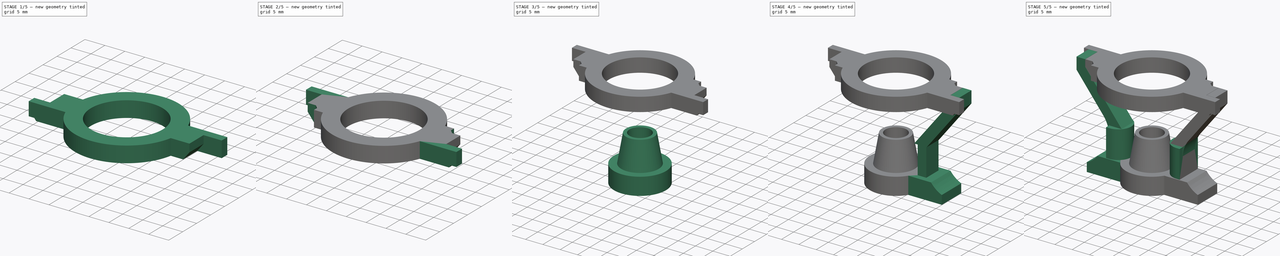
[diagram: build sequence overview — one tinted view per stage of 5, left to right]
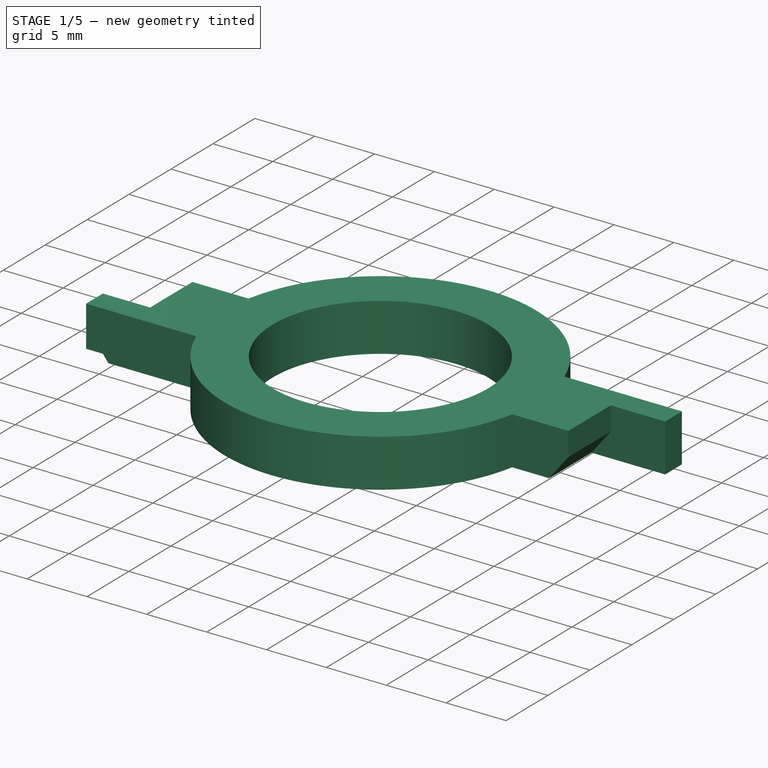
[diagram: stage 1 of 5 — iso view after this stage's code; geometry added in this stage tinted green]
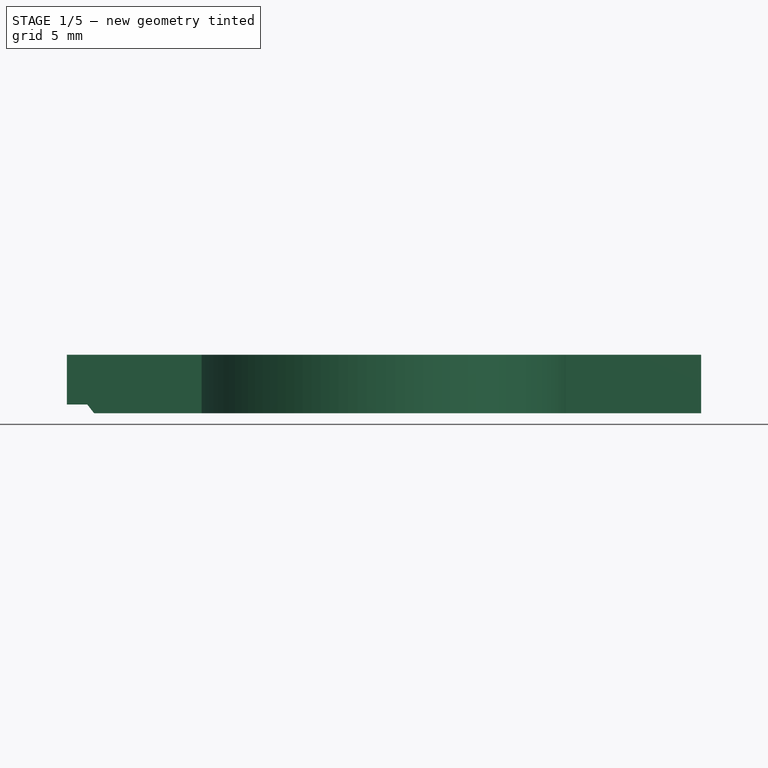
[diagram: stage 1 of 5 — front view after this stage's code; geometry added in this stage tinted green]
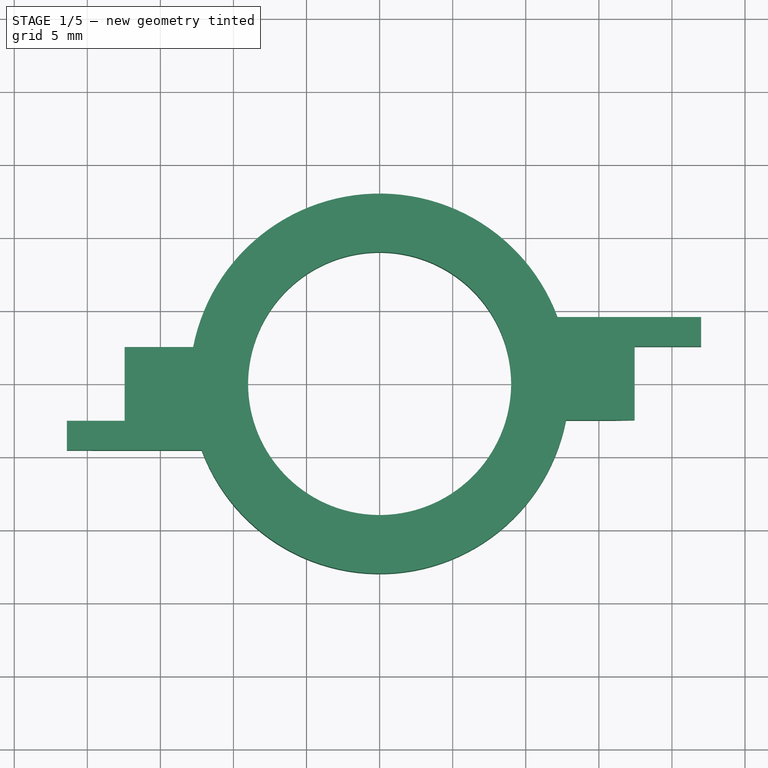
[diagram: stage 1 of 5 — top view after this stage's code; geometry added in this stage tinted green]
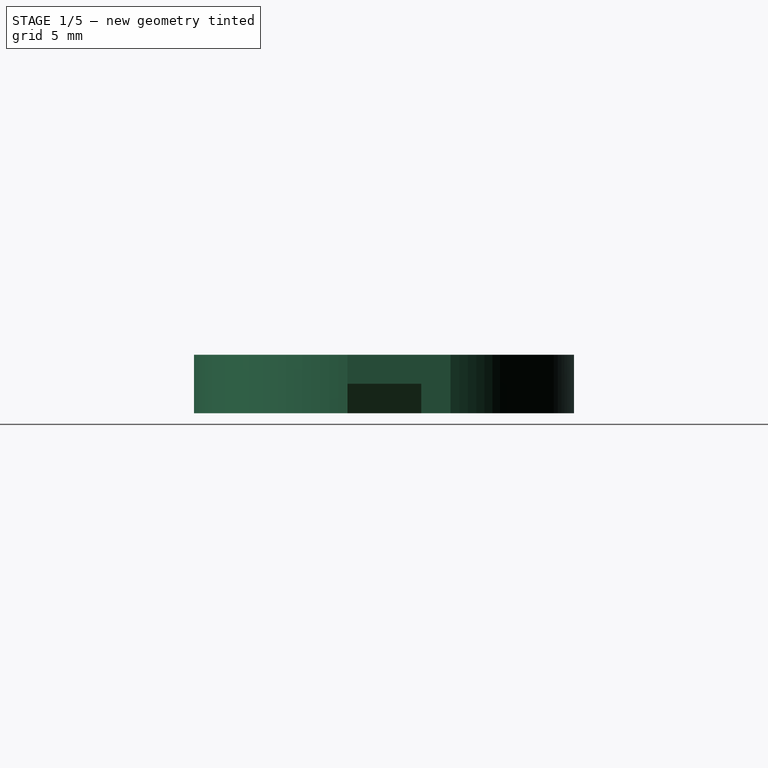
[diagram: stage 1 of 5 — right view after this stage's code; geometry added in this stage tinted green]
FCSTD DOCUMENT  (FreeCAD 1.0R39109 (Git))
Label: center_piece
License: All rights reserved
LicenseURL: https://en.wikipedia.org/wiki/All_rights_reserved
objects: Sketcher::SketchObject×15, PartDesign::Pad×7, PartDesign::Pocket×6, PartDesign::Plane×2, PartDesign::Fillet×2, PartDesign::Mirrored×2, PartDesign::Body×2, PartDesign::AdditiveLoft×1, PartDesign::ShapeBinder×1, PartDesign::PolarPattern×1
note: 89 computed .brp shape members not serialized (recipe doc carries the construction recipe); baked Part::Feature solids carry a one-line shape summary decoded from their .brp

FEATURE [PartDesign::Body] Body  label="centerig_piece"
  AllowCompound = false
  Group = -> [Sketch,DatumPlane,Sketch001,AdditiveLoft,Sketch002,Sketch003,Pad,Pocket,Sketch004,Pad001,Sketch005,Pad002,Sketch006,Pad003,Sketch007,Pad004,Sketch008,Pad005,Fillet,Mirrored,Fillet001]
  Origin = -> Origin
  Tip = -> Fillet001
FEATURE [PartDesign::ShapeBinder] CopyFillet001
  TraceSupport = false
FEATURE [PartDesign::Plane] DatumPlane001
  AttachmentSupport = -> [CopyFillet001]
  Length = 60
  MapMode = 5
  Placement = pos=(0,5.1e-15,23.4043) rot=(0,0,1;0rad)
  ResizeMode = 0
  Width = 60
FEATURE [Sketcher::SketchObject] Sketch009
  ArcFitTolerance = 1e-06
  AttachmentSupport = -> [DatumPlane001]
  FullyConstrained = true
  MakeInternals = false
  MapMode = 5
  Placement = pos=(0,5.1e-15,23.4043) rot=(0,0,1;0rad)
  sketch-geometry (13):
    g0: Circle CenterX=0 CenterY=0 CenterZ=0 NormalX=0 NormalY=0 NormalZ=1 AngleXU=0 Radius=9
    g1: ArcOfCircle CenterX=0 CenterY=0 CenterZ=0 NormalX=0 NormalY=0 NormalZ=1 AngleXU=0 Radius=13 StartAngle=0.357571 EndAngle=2.94808
    g2: LineSegment StartX=22 StartY=2.55 StartZ=0 EndX=17.45 EndY=2.55 EndZ=0
    g3: LineSegment StartX=17.45 StartY=2.55 StartZ=0 EndX=17.45 EndY=-2.5 EndZ=0
    g4: LineSegment StartX=17.45 StartY=-2.5 StartZ=0 EndX=12.7574 EndY=-2.5 EndZ=0
    g5: LineSegment StartX=22 StartY=2.55 StartZ=0 EndX=22 EndY=4.55 EndZ=0
    g6: LineSegment StartX=22 StartY=4.55 StartZ=0 EndX=12.1777 EndY=4.55 EndZ=0
    g7: LineSegment StartX=-17.45 StartY=2.5 StartZ=0 EndX=-17.45 EndY=-2.55 EndZ=0
    g8: LineSegment StartX=-17.45 StartY=-2.55 StartZ=0 EndX=-22 EndY=-2.55 EndZ=0
    g9: LineSegment StartX=-22 StartY=-2.55 StartZ=0 EndX=-22 EndY=-4.55 EndZ=0
    g10: LineSegment StartX=-22 StartY=-4.55 StartZ=0 EndX=-12.1777 EndY=-4.55 EndZ=0
    g11: LineSegment StartX=-17.45 StartY=2.5 StartZ=0 EndX=-12.7574 EndY=2.5 EndZ=0
    g12: ArcOfCircle CenterX=0 CenterY=0 CenterZ=0 NormalX=0 NormalY=0 NormalZ=1 AngleXU=0 Radius=13 StartAngle=3.49916 EndAngle=6.08967
  constraints (39):
    c: Coincident(g0,g-1)
    c: Coincident(g1,g0)
    c: Horizontal(g2)
    c: Coincident(g2,g3)
    c: Vertical(g3)
    c: Coincident(g3,g4)
    c: Horizontal(g4)
    c: Coincident(g2,g5)
    c: Vertical(g5)
    c: Coincident(g5,g6)
    c: Horizontal(g6)
    c: Vertical(g7)
    c: Coincident(g7,g8)
    c: Horizontal(g8)
    c: Coincident(g8,g9)
    c: Vertical(g9)
    c: Coincident(g9,g10)
    c: PointOnObject(g10,g12)
    c: Horizontal(g10)
    c: Coincident(g7,g11)
    c: Horizontal(g11)
    c: Diameter(g0) = 18
    c: Diameter(g1) = 26
    c: Distance(g3,g-1) = 2.5
    c: DistanceX(g-1,g3) = 17.45
    c: DistanceY(g-1,g2) = 2.55
    c: DistanceX(g-1,g2) = 22
    c: DistanceY(g5,g5) = 2
    c: Coincident(g12,g4)
    c: Coincident(g1,g6)
    c: DistanceX(g7,g-1) = 17.45
    c: DistanceY(g-1,g7) = 2.5
    c: DistanceY(g8,g-1) = 2.55
    c: DistanceX(g9,g-1) = 22
    c: DistanceY(g9,g9) = 2
    c: Equal(g1,g12)
    c: Coincident(g1,g11)
    c: PointOnObject(g12,g10)
    c: Coincident(g1,g12)
FEATURE [PartDesign::Pad] Pad006
  Direction = (0,0,1)
  Length = 4
  Length2 = 10
  Placement = pos=(0,5.1e-15,23.4043) rot=(0,0,1;0rad)
  Profile = -> Sketch009
  ReferenceAxis = -> Sketch009 [N_Axis]
  Refine = true
  Reversed = true
  Suppressed = false
  Type = 0
FEATURE [Sketcher::SketchObject] Sketch010
  ArcFitTolerance = 1e-06
  AttachmentSupport = -> [Pad006]
  FullyConstrained = false
  MakeInternals = false
  MapMode = 5
  Placement = pos=(0,-2.5,23.4043) rot=(1,0,0;1.5708rad)
  sketch-geometry (3):
    g0: LineSegment StartX=17.4709 StartY=-1.95258 StartZ=0 EndX=15.7842 EndY=-4.07705 EndZ=0
    g1: LineSegment StartX=15.7842 StartY=-4.07705 StartZ=0 EndX=17.8633 EndY=-4.07705 EndZ=0
    g2: LineSegment StartX=17.8633 StartY=-4.07705 StartZ=0 EndX=17.4709 EndY=-1.95258 EndZ=0
  constraints (4):
    c: Coincident(g0,g1)
    c: Horizontal(g1)
    c: Coincident(g1,g2)
    c: Coincident(g2,g0)
FEATURE [PartDesign::Pocket] Pocket001
  BaseFeature = -> Pad006
  Direction = (0,1,-2e-16)
  Length = 5.05
  Length2 = 5
  Placement = pos=(0,5.1e-15,23.4043) rot=(0,0,1;0rad)
  Profile = -> Sketch010
  ReferenceAxis = -> Sketch010 [N_Axis]
  Refine = true
  Suppressed = false
  Type = 0
FEATURE [Sketcher::SketchObject] Sketch011
  ArcFitTolerance = 1e-06
  AttachmentSupport = -> [Pocket001]
  FullyConstrained = false
  MakeInternals = false
  MapMode = 5
  Placement = pos=(0,2.5,23.4043) rot=(0,0.707107,0.707107;3.14159rad)
  sketch-geometry (3):
    g0: LineSegment StartX=15.8149 StartY=-4.06847 StartZ=0 EndX=17.4676 EndY=-1.97759 EndZ=0
    g1: LineSegment StartX=17.4676 StartY=-1.97759 StartZ=0 EndX=17.9885 EndY=-4.06847 EndZ=0
    g2: LineSegment StartX=17.9885 StartY=-4.06847 StartZ=0 EndX=15.8149 EndY=-4.06847 EndZ=0
  constraints (4):
    c: Coincident(g0,g1)
    c: Coincident(g1,g2)
    c: Coincident(g2,g0)
    c: Horizontal(g2)
FEATURE [PartDesign::Pocket] Pocket002
  BaseFeature = -> Pocket001
  Direction = (0,-1,2e-16)
  Length = 5.05
  Length2 = 5
  Placement = pos=(0,5.1e-15,23.4043) rot=(0,0,1;0rad)
  Profile = -> Sketch011
  ReferenceAxis = -> Sketch011 [N_Axis]
  Refine = true
  Suppressed = false
  Type = 0
FEATURE [Sketcher::SketchObject] Sketch012
  ArcFitTolerance = 1e-06
  AttachmentSupport = -> [Pocket002]
  FullyConstrained = false
  MakeInternals = false
  MapMode = 5
  Placement = pos=(0,-2.55,23.4043) rot=(0,0.707107,0.707107;3.14159rad)
  sketch-geometry (6):
    g0: LineSegment StartX=19.5055 StartY=-4.03728 StartZ=0 EndX=19.9991 EndY=-3.40548 EndZ=0
    g1: LineSegment StartX=19.9991 StartY=-3.40548 StartZ=0 EndX=21.3991 EndY=-3.40548 EndZ=0
    g2: LineSegment StartX=21.3991 StartY=-3.40548 StartZ=0 EndX=21.3991 EndY=0 EndZ=0
    g3: LineSegment StartX=21.3991 StartY=0 StartZ=0 EndX=22.759 EndY=0 EndZ=0
    g4: LineSegment StartX=22.759 StartY=0 StartZ=0 EndX=22.759 EndY=-4.4058 EndZ=0
    g5: LineSegment StartX=22.759 StartY=-4.4058 StartZ=0 EndX=19.5055 EndY=-4.03728 EndZ=0
  constraints (12):
    c: Coincident(g0,g1)
    c: Horizontal(g1)
    c: Coincident(g1,g2)
    c: PointOnObject(g2,g-1)
    c: Vertical(g2)
    c: Coincident(g2,g3)
    c: PointOnObject(g3,g-1)
    c: Coincident(g3,g4)
    c: Vertical(g4)
    c: Coincident(g4,g5)
    c: Coincident(g5,g0)
    c: DistanceX(g1,g1) = 1.4
FEATURE [PartDesign::Pocket] Pocket003
  BaseFeature = -> Pocket002
  Direction = (0,-1,2e-16)
  Length = 5
  Length2 = 5
  Placement = pos=(0,5.1e-15,23.4043) rot=(0,0,1;0rad)
  Profile = -> Sketch012
  ReferenceAxis = -> Sketch012 [N_Axis]
  Refine = true
  Suppressed = false
  Type = 0
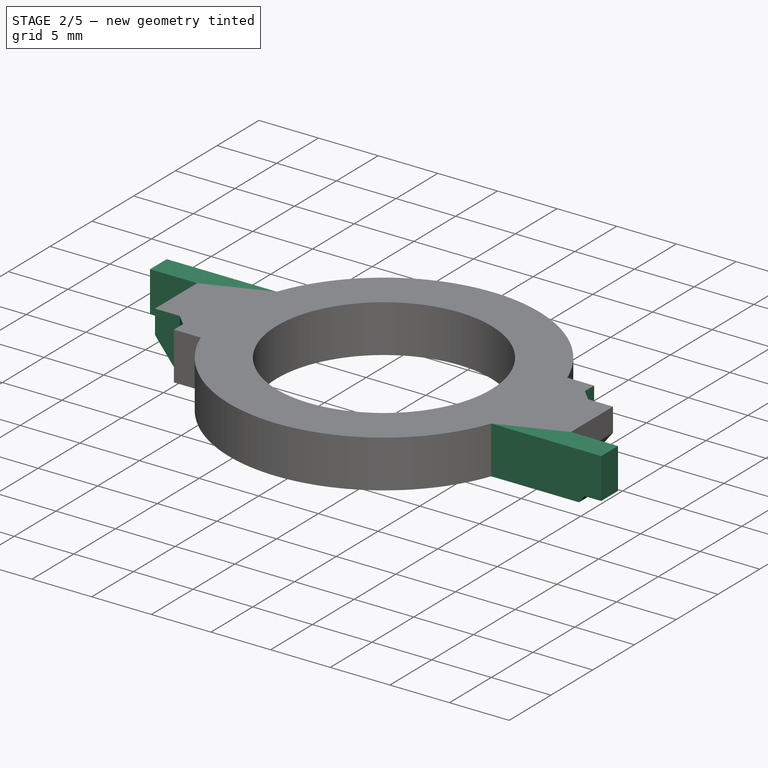
[diagram: stage 2 of 5 — iso view after this stage's code; geometry added in this stage tinted green]
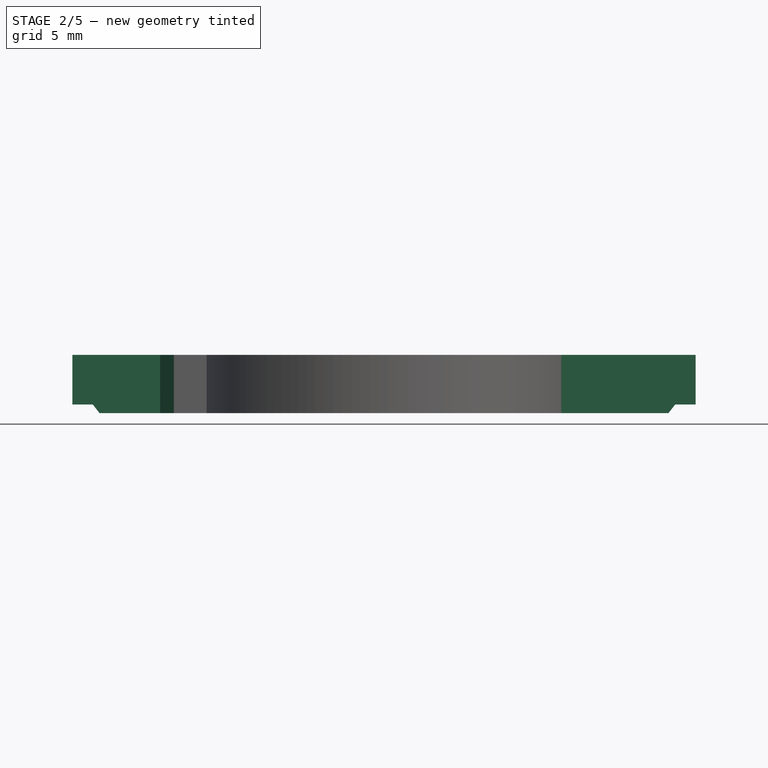
[diagram: stage 2 of 5 — front view after this stage's code; geometry added in this stage tinted green]
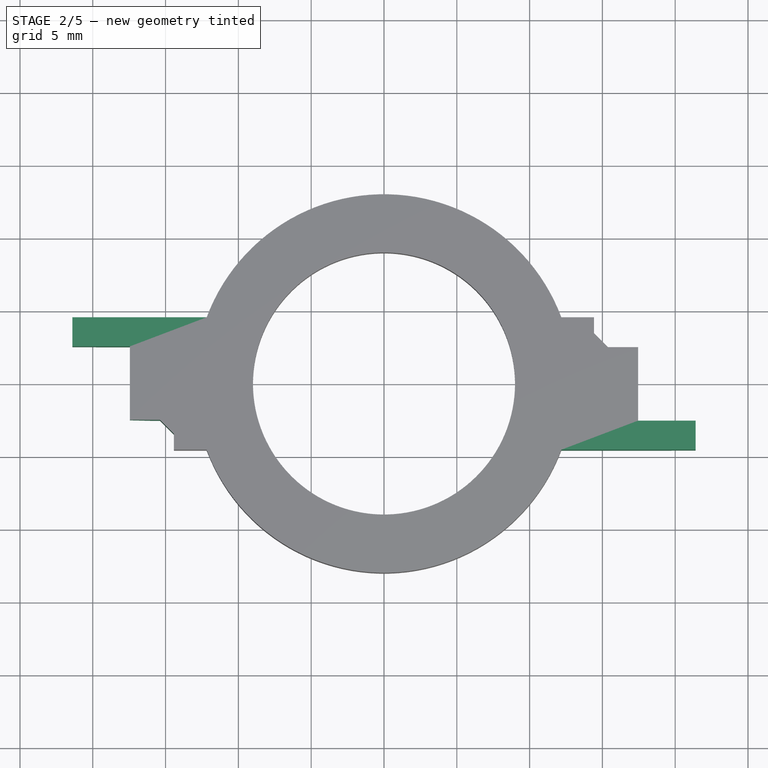
[diagram: stage 2 of 5 — top view after this stage's code; geometry added in this stage tinted green]
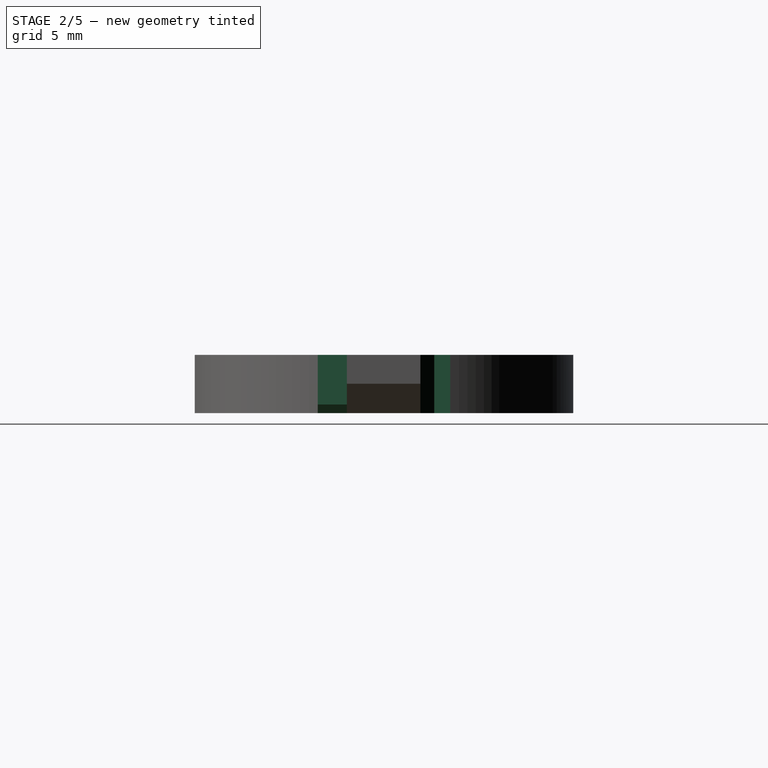
[diagram: stage 2 of 5 — right view after this stage's code; geometry added in this stage tinted green]
FEATURE [Sketcher::SketchObject] Sketch013
  ArcFitTolerance = 1e-06
  AttachmentSupport = -> [Pocket003]
  FullyConstrained = false
  MakeInternals = false
  MapMode = 5
  Placement = pos=(0,2.55,23.4043) rot=(1,0,0;1.5708rad)
  sketch-geometry (6):
    g0: LineSegment StartX=19.4973 StartY=-4.04779 StartZ=0 EndX=19.9998 EndY=-3.40575 EndZ=0
    g1: LineSegment StartX=19.9998 StartY=-3.40575 StartZ=0 EndX=21.3998 EndY=-3.40575 EndZ=0
    g2: LineSegment StartX=21.3998 StartY=-3.40575 StartZ=0 EndX=21.3998 EndY=0 EndZ=0
    g3: LineSegment StartX=21.3998 StartY=0 StartZ=0 EndX=22.4964 EndY=0 EndZ=0
    g4: LineSegment StartX=22.4964 StartY=0 StartZ=0 EndX=22.4964 EndY=-4.46575 EndZ=0
    g5: LineSegment StartX=22.4964 StartY=-4.46575 StartZ=0 EndX=19.4973 EndY=-4.04779 EndZ=0
  constraints (12):
    c: Coincident(g0,g1)
    c: Horizontal(g1)
    c: Coincident(g1,g2)
    c: PointOnObject(g2,g-1)
    c: Vertical(g2)
    c: Coincident(g2,g3)
    c: PointOnObject(g3,g-1)
    c: Coincident(g3,g4)
    c: Vertical(g4)
    c: Coincident(g4,g5)
    c: Coincident(g5,g0)
    c: DistanceX(g1,g1) = 1.4
FEATURE [PartDesign::Pocket] Pocket004
  BaseFeature = -> Pocket003
  Direction = (0,1,-2e-16)
  Length = 5
  Length2 = 5
  Placement = pos=(0,5.1e-15,23.4043) rot=(0,0,1;0rad)
  Profile = -> Sketch013
  ReferenceAxis = -> Sketch013 [N_Axis]
  Refine = true
  Suppressed = false
  Type = 0
FEATURE [PartDesign::Mirrored] Mirrored001
  BaseFeature = -> Pocket004
  MirrorPlane = -> XZ_Plane001
  Placement = pos=(0,5.1e-15,23.4043) rot=(0,0,1;0rad)
  Refine = true
  Suppressed = false
  TransformMode = 1
FEATURE [Sketcher::SketchObject] Sketch014
  ArcFitTolerance = 1e-06
  AttachmentSupport = -> [Mirrored001]
  FullyConstrained = false
  MakeInternals = false
  MapMode = 5
  Placement = pos=(0,5.1e-15,23.4043) rot=(0,0,1;0rad)
  sketch-geometry (7):
    g0: LineSegment StartX=-21.5083 StartY=-2.49782 StartZ=0 EndX=-21.5083 EndY=-4.81239 EndZ=0
    g1: LineSegment StartX=-21.5083 StartY=-4.81239 StartZ=0 EndX=-14.4267 EndY=-4.81239 EndZ=0
    g2: LineSegment StartX=-14.4267 StartY=-4.81239 StartZ=0 EndX=-14.4267 EndY=-3.44836 EndZ=0
    g3: LineSegment StartX=-15.3772 StartY=-2.49782 StartZ=0 EndX=-21.5083 EndY=-2.49782 EndZ=0
    g4: ArcOfCircle [constr] CenterX=-15.3772 CenterY=-3.44836 CenterZ=0 NormalX=0 NormalY=0 NormalZ=1 AngleXU=0 Radius=0.950536 StartAngle=0 EndAngle=1.5708
    g5: GeomPoint [constr] X=-14.4267 Y=-2.49782 Z=0
    g6: LineSegment StartX=-14.4267 StartY=-3.44836 StartZ=0 EndX=-15.3772 EndY=-2.49782 EndZ=0
  constraints (14):
    c: Coincident(g0,g1)
    c: Coincident(g1,g2)
    c: Coincident(g3,g0)
    c: Vertical(g0)
    c: Vertical(g2)
    c: Horizontal(g1)
    c: Horizontal(g3)
    c: PointOnObject(g5,g2)
    c: PointOnObject(g5,g3)
    c: Tangent(g2,g4) = -1.5708
    c: Tangent(g3,g4) = -1.5708
    c: Coincident(g6,g2)
    c: Coincident(g6,g3)
    c: Block(g3)
FEATURE [PartDesign::Pocket] Pocket005
  BaseFeature = -> Mirrored001
  Direction = (0,0,-1)
  Length = 5
  Length2 = 5
  Placement = pos=(0,5.1e-15,23.4043) rot=(0,0,1;0rad)
  Profile = -> Sketch014
  ReferenceAxis = -> Sketch014 [N_Axis]
  Refine = true
  Suppressed = false
  Type = 0
FEATURE [PartDesign::PolarPattern] PolarPattern
  Angle = 360
  Axis = -> Sketch014 [N_Axis]
  BaseFeature = -> Pocket005
  Mode = 0
  Occurrences = 2
  Offset = 120
  Originals = -> [Pocket005]
  Placement = pos=(0,5.1e-15,23.4043) rot=(0,0,1;0rad)
  Refine = true
  Suppressed = false
  TransformMode = 0
FEATURE [PartDesign::Body] Body001  label="stability_ring"
  AllowCompound = false
  Group = -> [Sketch009,DatumPlane001,CopyFillet001,Pad006,Sketch010,Pocket001,Sketch011,Pocket002,Sketch012,Pocket003,Sketch013,Pocket004,Mirrored001,Sketch014,Pocket005,PolarPattern]
  Origin = -> Origin001
  Tip = -> PolarPattern
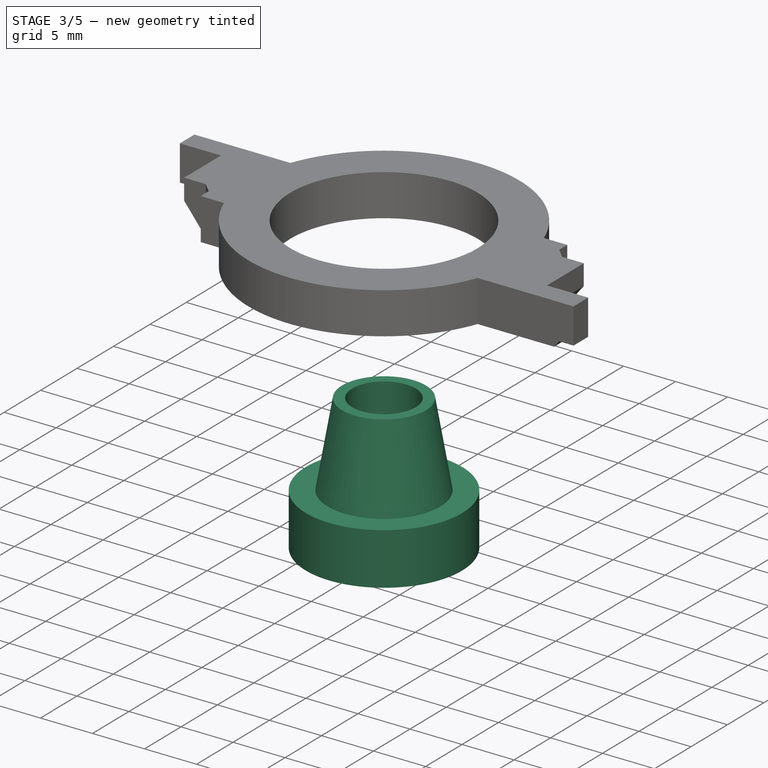
[diagram: stage 3 of 5 — iso view after this stage's code; geometry added in this stage tinted green]
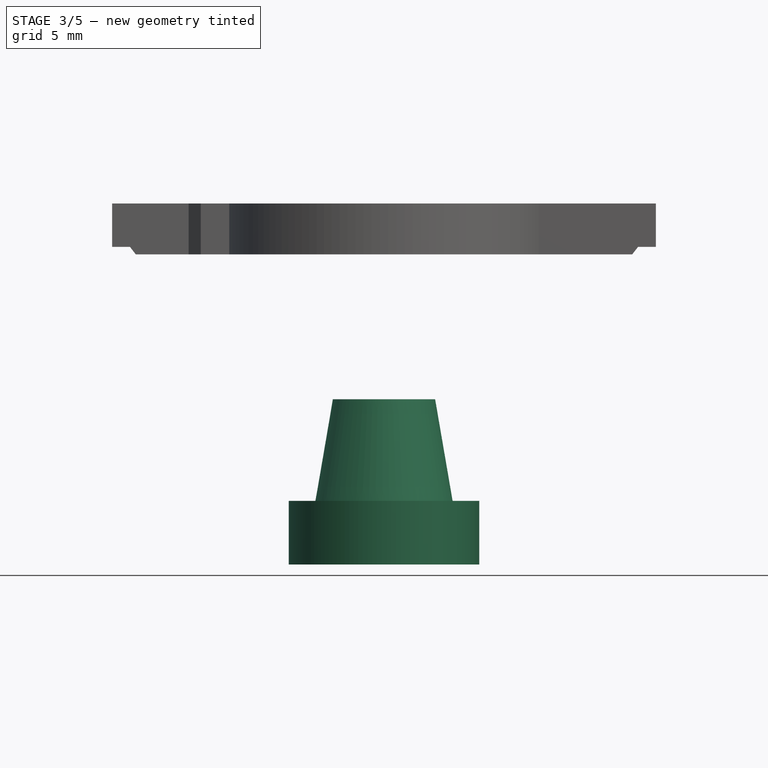
[diagram: stage 3 of 5 — front view after this stage's code; geometry added in this stage tinted green]
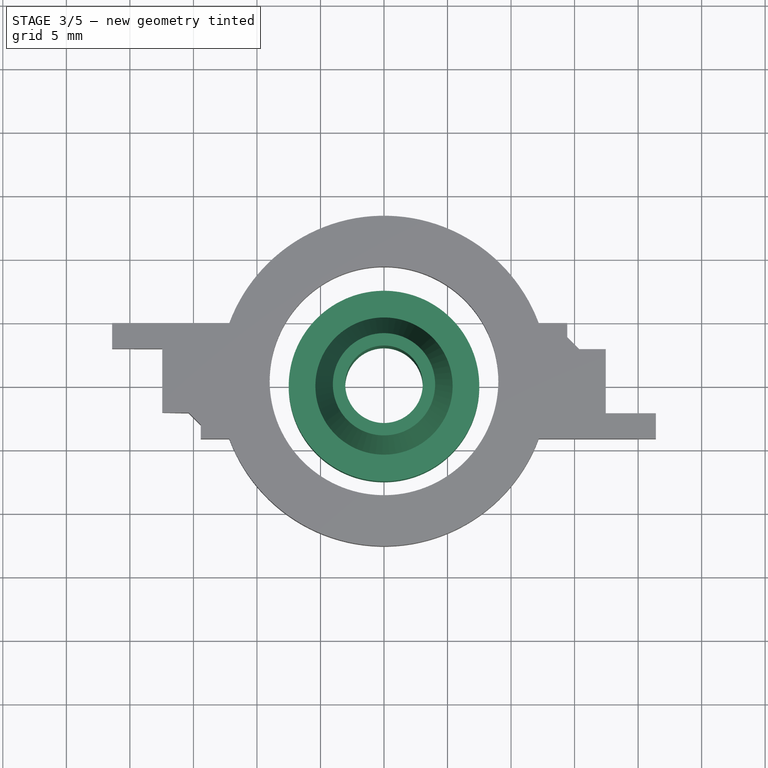
[diagram: stage 3 of 5 — top view after this stage's code; geometry added in this stage tinted green]
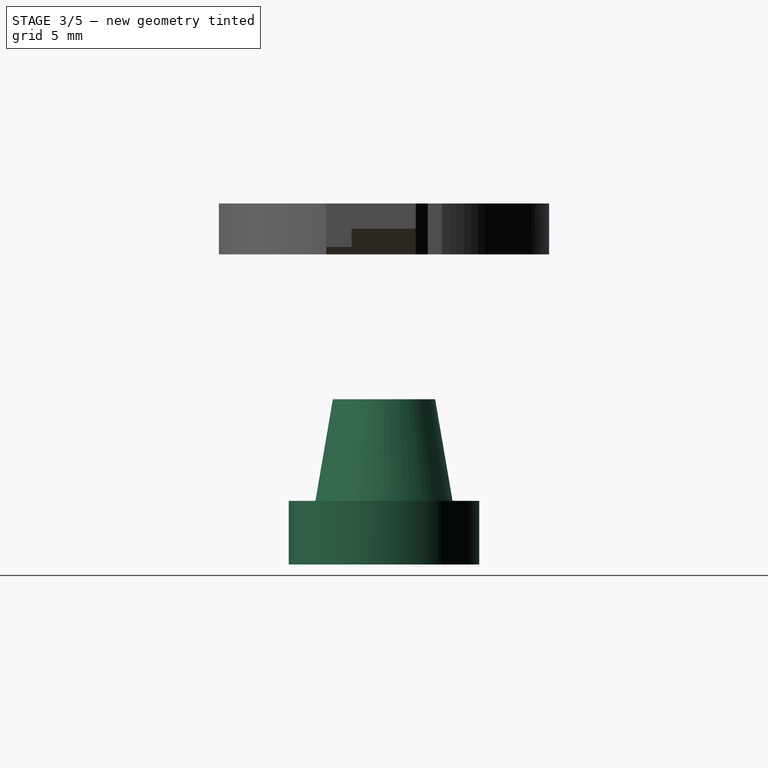
[diagram: stage 3 of 5 — right view after this stage's code; geometry added in this stage tinted green]
FEATURE [Sketcher::SketchObject] Sketch
  ArcFitTolerance = 1e-06
  AttachmentSupport = -> [XY_Plane]
  FullyConstrained = true
  MakeInternals = false
  MapMode = 5
  sketch-geometry (1):
    g0: Circle CenterX=0 CenterY=0 CenterZ=0 NormalX=0 NormalY=0 NormalZ=1 AngleXU=0 Radius=5.4
  constraints (2):
    c: Diameter(g0) = 10.8
    c: Coincident(g0,g-1)
FEATURE [PartDesign::Plane] DatumPlane
  AttachmentOffset = pos=(0,0,8) rot=(0,0,1;0rad)
  AttachmentSupport = -> [Sketch]
  Length = 60
  MapMode = 2
  Placement = pos=(0,0,8) rot=(0,0,1;0rad)
  ResizeMode = 0
  Width = 60
FEATURE [Sketcher::SketchObject] Sketch001
  ArcFitTolerance = 1e-06
  AttachmentSupport = -> [DatumPlane]
  FullyConstrained = true
  MakeInternals = false
  MapMode = 5
  Placement = pos=(0,0,8) rot=(0,0,1;0rad)
  sketch-geometry (1):
    g0: Circle CenterX=0 CenterY=0 CenterZ=0 NormalX=0 NormalY=0 NormalZ=1 AngleXU=0 Radius=4.025
  constraints (2):
    c: Diameter(g0) = 8.05
    c: Coincident(g0,g-1)
FEATURE [PartDesign::AdditiveLoft] AdditiveLoft
  Closed = false
  Profile = -> Sketch
  Refine = true
  Ruled = false
  Sections = -> [Sketch001]
  Suppressed = false
FEATURE [Sketcher::SketchObject] Sketch002
  ArcFitTolerance = 1e-06
  AttachmentSupport = -> [DatumPlane]
  FullyConstrained = true
  MakeInternals = false
  MapMode = 5
  Placement = pos=(0,0,8) rot=(0,0,1;0rad)
  sketch-geometry (1):
    g0: Circle CenterX=0 CenterY=0 CenterZ=0 NormalX=0 NormalY=0 NormalZ=1 AngleXU=0 Radius=3.05
  constraints (2):
    c: Diameter(g0) = 6.1
    c: Coincident(g0,g-1)
FEATURE [Sketcher::SketchObject] Sketch003
  ArcFitTolerance = 1e-06
  AttachmentSupport = -> [AdditiveLoft]
  FullyConstrained = true
  MakeInternals = false
  MapMode = 5
  Placement = pos=(0,0,0) rot=(1,0,0;3.14159rad)
  sketch-geometry (1):
    g0: Circle CenterX=0 CenterY=0 CenterZ=0 NormalX=0 NormalY=0 NormalZ=1 AngleXU=0 Radius=7.5
  constraints (2):
    c: Diameter(g0) = 15
    c: Coincident(g0,g-1)
FEATURE [PartDesign::Pad] Pad
  BaseFeature = -> AdditiveLoft
  Direction = (0,0,-1)
  Length = 5
  Length2 = 10
  Profile = -> Sketch003
  ReferenceAxis = -> Sketch003 [N_Axis]
  Refine = true
  Suppressed = false
  Type = 0
FEATURE [PartDesign::Pocket] Pocket
  BaseFeature = -> Pad
  Direction = (0,0,-1)
  Length = 200
  Length2 = 5
  Profile = -> Sketch002
  ReferenceAxis = -> Sketch002 [N_Axis]
  Refine = true
  Suppressed = false
  Type = 0
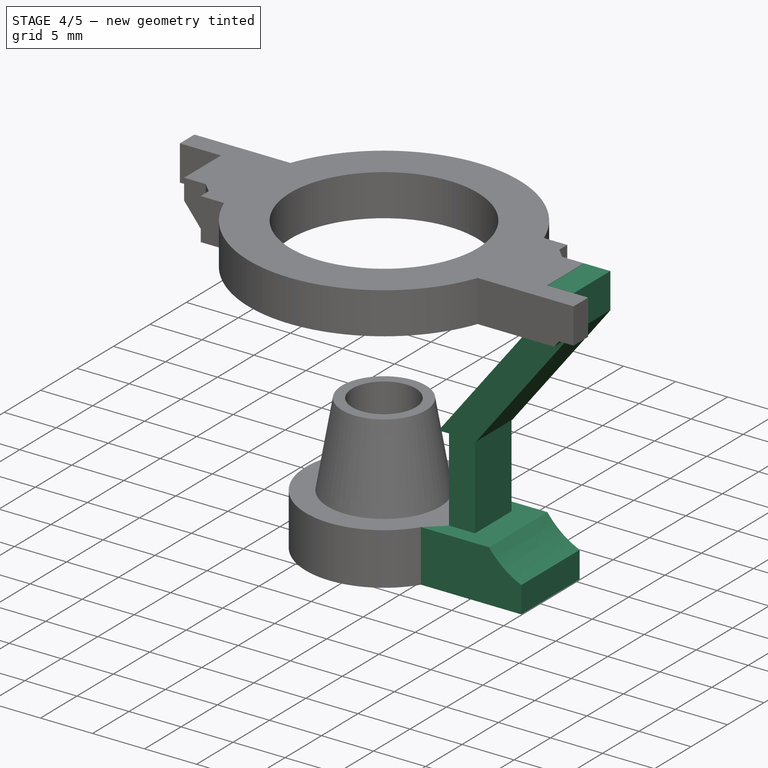
[diagram: stage 4 of 5 — iso view after this stage's code; geometry added in this stage tinted green]
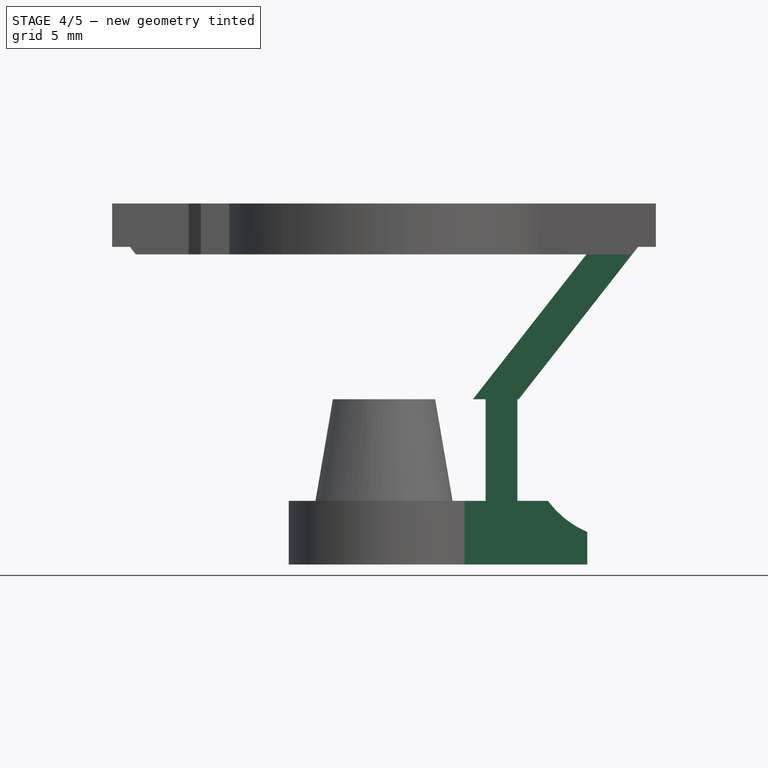
[diagram: stage 4 of 5 — front view after this stage's code; geometry added in this stage tinted green]
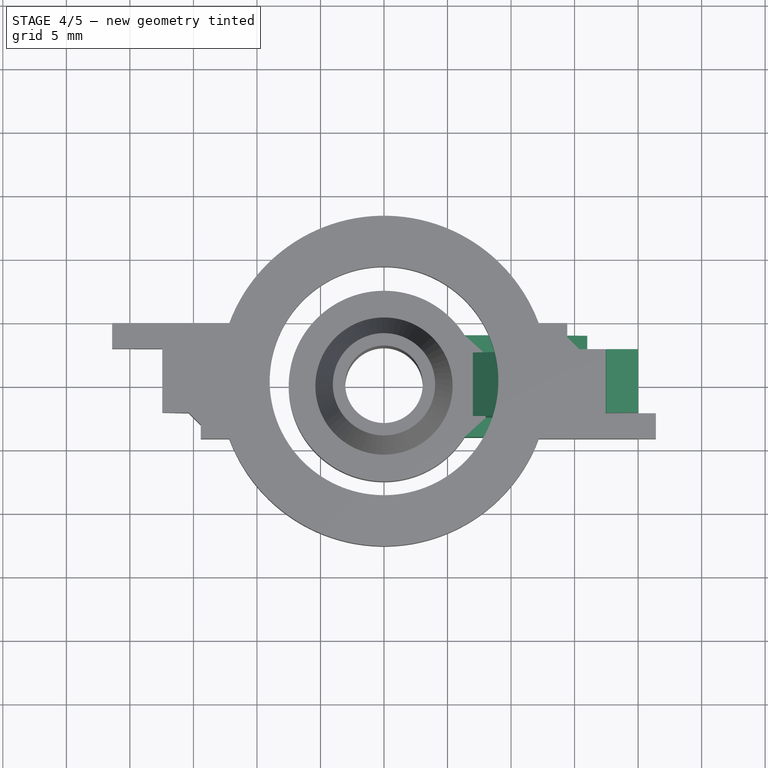
[diagram: stage 4 of 5 — top view after this stage's code; geometry added in this stage tinted green]
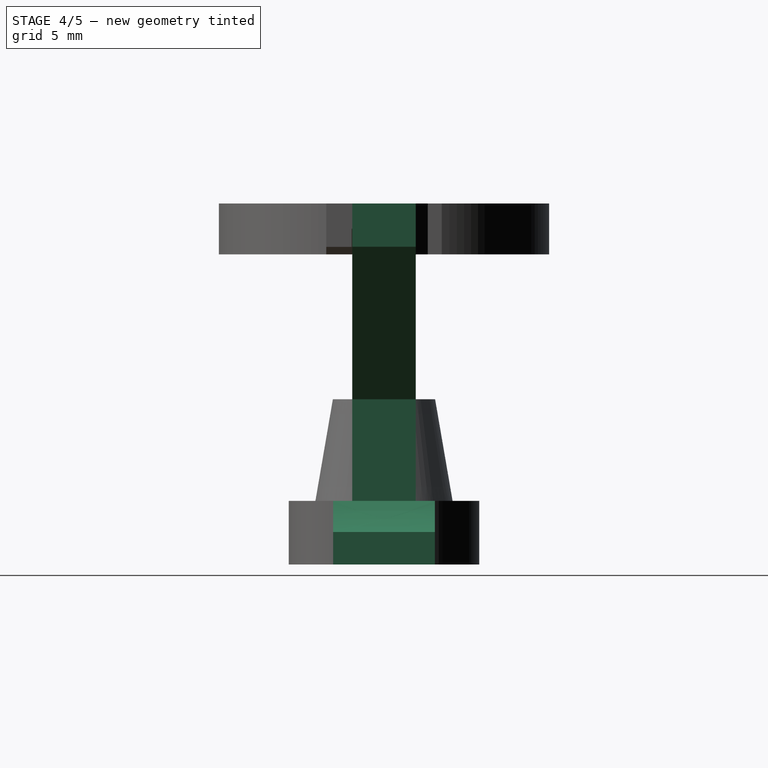
[diagram: stage 4 of 5 — right view after this stage's code; geometry added in this stage tinted green]
FEATURE [Sketcher::SketchObject] Sketch004
  ArcFitTolerance = 1e-06
  AttachmentSupport = -> [Pocket]
  FullyConstrained = true
  MakeInternals = false
  MapMode = 5
  sketch-geometry (4):
    g0: LineSegment StartX=6 StartY=4 StartZ=0 EndX=6 EndY=-4 EndZ=0
    g1: LineSegment StartX=6 StartY=-4 StartZ=0 EndX=12.5 EndY=-4 EndZ=0
    g2: LineSegment StartX=12.5 StartY=-4 StartZ=0 EndX=12.5 EndY=4 EndZ=0
    g3: LineSegment StartX=12.5 StartY=4 StartZ=0 EndX=6 EndY=4 EndZ=0
  constraints (11):
    c: Coincident(g0,g1)
    c: Coincident(g1,g2)
    c: Coincident(g2,g3)
    c: Coincident(g3,g0)
    c: Vertical(g0)
    c: Horizontal(g1)
    c: Horizontal(g3)
    c: DistanceX(g-1,g2) = 12.5
    c: DistanceY(g2,g2) = 8
    c: DistanceX(g-1,g0) = 6
    c: Symmetric(g1,g2,g-1)
FEATURE [PartDesign::Pad] Pad001  label="prop guard base block"
  BaseFeature = -> Pocket
  Direction = (0,0,1)
  Length = 5
  Length2 = 10
  Profile = -> Sketch004
  ReferenceAxis = -> Sketch004 [N_Axis]
  Refine = true
  Reversed = true
  Suppressed = false
  Type = 0
FEATURE [Sketcher::SketchObject] Sketch005
  ArcFitTolerance = 1e-06
  AttachmentSupport = -> [Pad001]
  FullyConstrained = false
  MakeInternals = false
  MapMode = 5
  Placement = pos=(0,-4,0) rot=(1,0,0;1.5708rad)
  sketch-geometry (10):
    g0: LineSegment StartX=12.5 StartY=-5 StartZ=0 EndX=12.5 EndY=0 EndZ=0
    g1: LineSegment StartX=16 StartY=-2.45 StartZ=0 EndX=16 EndY=-5 EndZ=0
    g2: LineSegment StartX=16 StartY=-5 StartZ=0 EndX=12.5 EndY=-5 EndZ=0
    g3: LineSegment StartX=12.5 StartY=0 StartZ=0 EndX=12.9 EndY=0 EndZ=0
    g4: Circle [constr] CenterX=12.9 CenterY=0 CenterZ=0 NormalX=0 NormalY=0 NormalZ=1 AngleXU=0 Radius=1
    g5: Circle [constr] CenterX=14.1513 CenterY=-1.66412 CenterZ=0 NormalX=0 NormalY=0 NormalZ=1 AngleXU=0 Radius=1
    g6: Circle [constr] CenterX=16 CenterY=-2.45 CenterZ=0 NormalX=0 NormalY=0 NormalZ=1 AngleXU=0 Radius=1
    g7: BSplineCurve PolesCount=3 KnotsCount=2 Degree=2 IsPeriodic=0
    g8: GeomPoint [constr] X=12.9 Y=0 Z=0
    g9: GeomPoint [constr] X=16 Y=-2.45 Z=0
  constraints (23):
    c: PointOnObject(g0,g-1)
    c: Vertical(g0)
    c: Vertical(g1)
    c: Coincident(g1,g2)
    c: Coincident(g2,g0)
    c: Horizontal(g2)
    c: DistanceY(g0,g0) = 5
    c: DistanceX(g-1,g0) = 12.5
    c: DistanceX(g2,g2) = 3.5
    c: DistanceY(g1,g1) = 2.55
    c: Coincident(g3,g0)
    c: PointOnObject(g3,g-1)
    c: Weight(g4) = 1
    c: Equal(g4,g5)
    c: Equal(g4,g6)
    c: InternalAlignment(g4,g7)
    c: InternalAlignment(g5,g7)
    c: InternalAlignment(g6,g7)
    c: InternalAlignment(g8,g7)
    c: InternalAlignment(g9,g7)
    c: Coincident(g4,g3)
    c: Coincident(g6,g1)
    c: DistanceX(g3,g3) = 0.4
FEATURE [PartDesign::Pad] Pad002  label="prop guard out"
  BaseFeature = -> Pad001
  Direction = (0,-1,2e-16)
  Length = 8
  Length2 = 10
  Profile = -> Sketch005
  ReferenceAxis = -> Sketch005 [N_Axis]
  Refine = true
  Reversed = true
  Suppressed = false
  Type = 0
FEATURE [Sketcher::SketchObject] Sketch006
  ArcFitTolerance = 1e-06
  AttachmentSupport = -> [Pad002]
  FullyConstrained = true
  MakeInternals = false
  MapMode = 5
  Placement = pos=(0,0,-1e-16) rot=(0,0,1;0rad)
  sketch-geometry (4):
    g0: LineSegment StartX=8 StartY=2.5 StartZ=0 EndX=8 EndY=-2.5 EndZ=0
    g1: LineSegment StartX=8 StartY=-2.5 StartZ=0 EndX=10.5 EndY=-2.5 EndZ=0
    g2: LineSegment StartX=10.5 StartY=-2.5 StartZ=0 EndX=10.5 EndY=2.5 EndZ=0
    g3: LineSegment StartX=10.5 StartY=2.5 StartZ=0 EndX=8 EndY=2.5 EndZ=0
  constraints (11):
    c: Coincident(g0,g1)
    c: Coincident(g1,g2)
    c: Coincident(g2,g3)
    c: Coincident(g3,g0)
    c: Vertical(g0)
    c: Horizontal(g1)
    c: Horizontal(g3)
    c: DistanceX(g3,g3) = 2.5
    c: DistanceY(g2,g2) = 5
    c: Symmetric(g2,g1,g-1)
    c: DistanceX(g-1,g0) = 8
FEATURE [PartDesign::Pad] Pad003  label="prop guard in base"
  BaseFeature = -> Pad002
  Direction = (0,0,1)
  Length = 8
  Length2 = 10
  Profile = -> Sketch006
  ReferenceAxis = -> Sketch006 [N_Axis]
  Refine = true
  Suppressed = false
  Type = 0
FEATURE [Sketcher::SketchObject] Sketch007
  ArcFitTolerance = 1e-06
  AttachmentSupport = -> [Pad003]
  FullyConstrained = true
  MakeInternals = false
  MapMode = 5
  Placement = pos=(0,-2.5,0) rot=(1,0,0;1.5708rad)
  sketch-geometry (6):
    g0: LineSegment StartX=7 StartY=8 StartZ=0 EndX=10.6 EndY=8 EndZ=0
    g1: LineSegment StartX=10.6 StartY=8 StartZ=0 EndX=20 EndY=20 EndZ=0
    g2: LineSegment StartX=17.5 StartY=21.4043 StartZ=0 EndX=7 EndY=8 EndZ=0
    g3: LineSegment StartX=20 StartY=20 StartZ=0 EndX=20 EndY=23.4043 EndZ=0
    g4: LineSegment StartX=20 StartY=23.4043 StartZ=0 EndX=17.5 EndY=23.4043 EndZ=0
    g5: LineSegment StartX=17.5 StartY=23.4043 StartZ=0 EndX=17.5 EndY=21.4043 EndZ=0
  constraints (18):
    c: Horizontal(g0)
    c: Coincident(g0,g1)
    c: Coincident(g2,g0)
    c: Coincident(g1,g3)
    c: Vertical(g3)
    c: Coincident(g3,g4)
    c: Horizontal(g4)
    c: Coincident(g4,g5)
    c: Coincident(g5,g2)
    c: Vertical(g5)
    c: Parallel(g2,g1)
    c: DistanceX(g0,g0) = 3.6
    c: DistanceX(g-1,g0) = 7
    c: DistanceY(g-1,g0) = 8
    c: DistanceX(g-1,g3) = 20
    c: DistanceX(g4,g4) = 2.5
    c: DistanceY(g5,g5) = 2
    c: DistanceY(g-1,g1) = 20
FEATURE [PartDesign::Pad] Pad004  label="prop guard in extension"
  BaseFeature = -> Pad003
  Direction = (0,-1,2e-16)
  Length = 5
  Length2 = 10
  Profile = -> Sketch007
  ReferenceAxis = -> Sketch007 [N_Axis]
  Refine = true
  Reversed = true
  Suppressed = false
  Type = 0
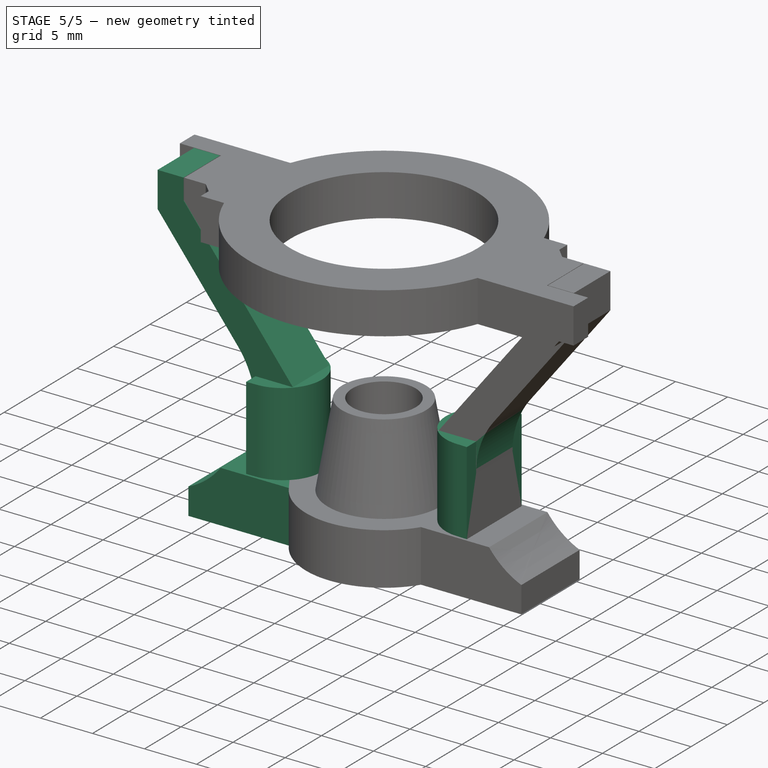
[diagram: stage 5 of 5 — iso view after this stage's code; geometry added in this stage tinted green]
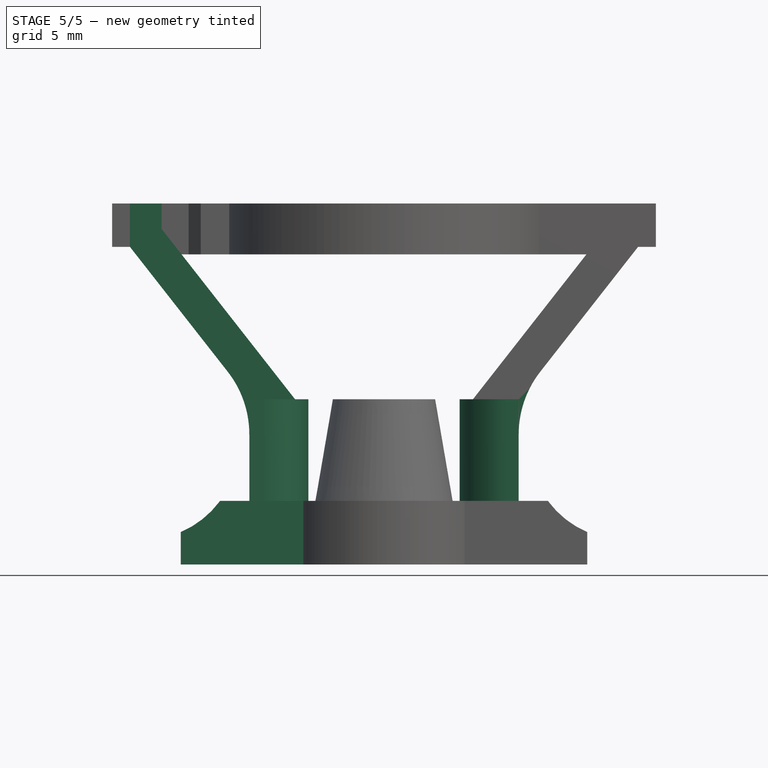
[diagram: stage 5 of 5 — front view after this stage's code; geometry added in this stage tinted green]
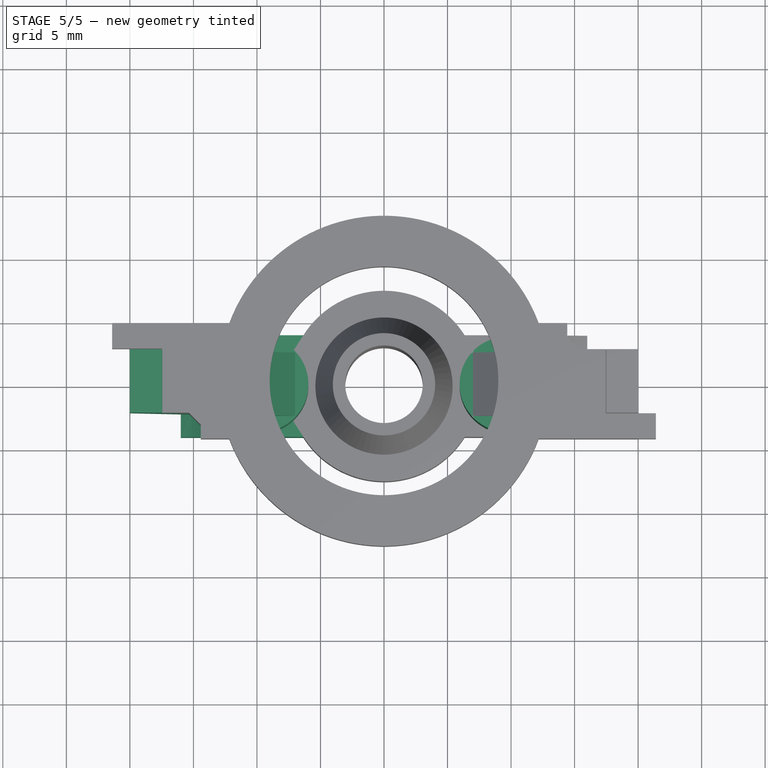
[diagram: stage 5 of 5 — top view after this stage's code; geometry added in this stage tinted green]
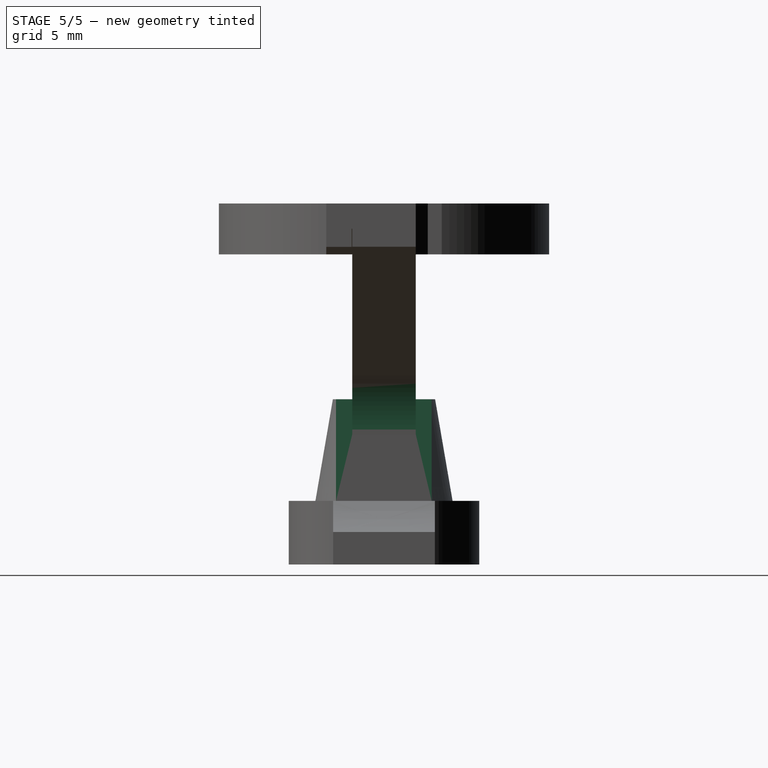
[diagram: stage 5 of 5 — right view after this stage's code; geometry added in this stage tinted green]
FEATURE [Sketcher::SketchObject] Sketch008
  ArcFitTolerance = 1e-06
  FullyConstrained = true
  MakeInternals = false
  MapMode = 5
  sketch-geometry (5):
    g0: ArcOfCircle CenterX=9.7 CenterY=0 CenterZ=0 NormalX=0 NormalY=0 NormalZ=1 AngleXU=0 Radius=3.75 StartAngle=1.59747 EndAngle=4.68572
    g1: GeomPoint [constr] X=5.6 Y=0 Z=0
    g2: LineSegment StartX=9.6 StartY=-3.74867 StartZ=0 EndX=10.6 EndY=-3.77534 EndZ=0
    g3: LineSegment StartX=10.6 StartY=-3.77534 StartZ=0 EndX=10.6 EndY=3.74867 EndZ=0
    g4: LineSegment StartX=10.6 StartY=3.74867 StartZ=0 EndX=9.6 EndY=3.74867 EndZ=0
  constraints (14):
    c: PointOnObject(g0,g-1)
    c: DistanceX(g-1,g0) = 9.7
    c: Radius(g0) = 3.75
    c: PointOnObject(g1,g-1)
    c: DistanceX(g-1,g1) = 5.6
    c: DistanceX(g1,g0) = 4
    c: DistanceX(g1,g0) = 4
    c: Tangent(g0,g2) = -1.5708
    c: Coincident(g2,g3)
    c: Vertical(g3)
    c: Coincident(g3,g4)
    c: Coincident(g4,g0)
    c: Horizontal(g4)
    c: DistanceX(g1,g2) = 5
FEATURE [PartDesign::Pad] Pad005  label="centering half circle"
  BaseFeature = -> Pad004
  Direction = (0,0,1)
  Length = 8
  Length2 = 10
  Profile = -> Sketch008
  ReferenceAxis = -> Sketch008 [N_Axis]
  Refine = true
  Suppressed = false
  Type = 0
FEATURE [PartDesign::Fillet] Fillet
  Base = -> Pad005 [Edge29]
  BaseFeature = -> Pad005
  Radius = 8
  Refine = true
  SupportTransform = false
  Suppressed = false
  UseAllEdges = false
FEATURE [PartDesign::Mirrored] Mirrored
  BaseFeature = -> Fillet
  MirrorPlane = -> Sketch004 [V_Axis]
  Originals = -> [Pad001,Pad002,Pad003,Pad004,Pad005]
  Refine = true
  Suppressed = false
  TransformMode = 0
FEATURE [PartDesign::Fillet] Fillet001
  Base = -> Mirrored [Edge59]
  BaseFeature = -> Mirrored
  Radius = 8
  Refine = true
  SupportTransform = false
  Suppressed = false
  UseAllEdges = false
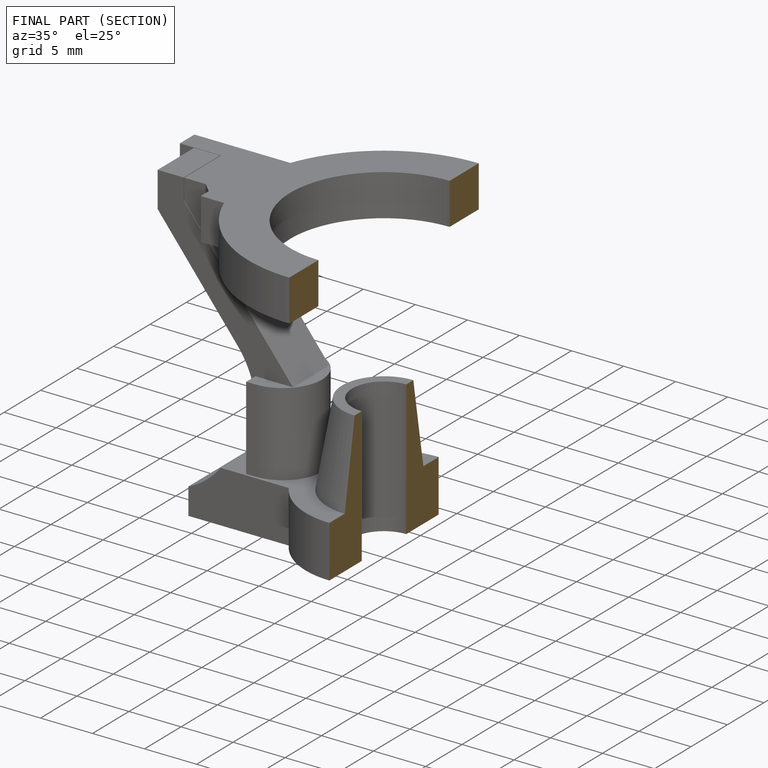
[diagram: finished part — half-section view (interior)]
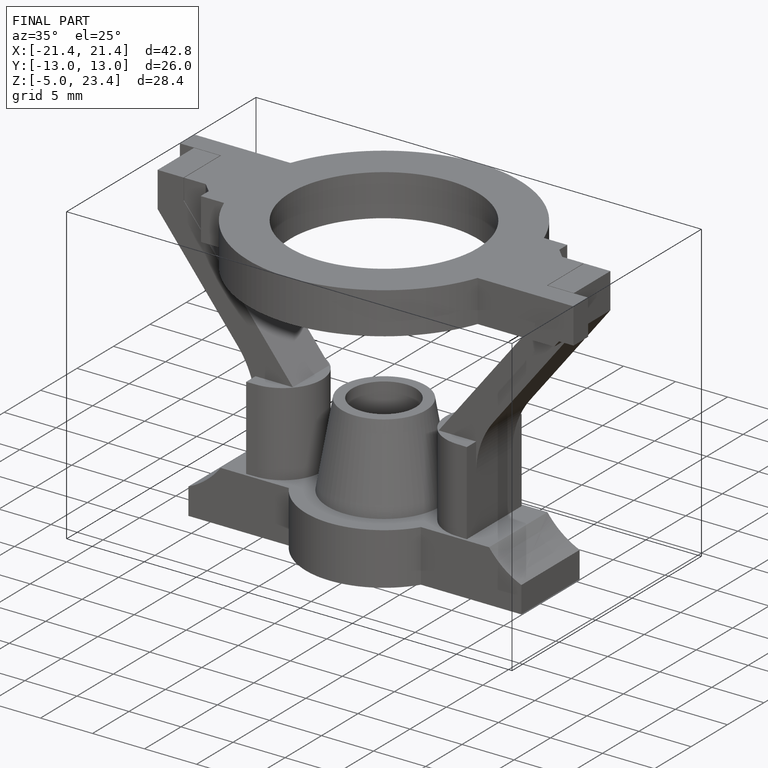
[diagram: finished part — iso view with bounding-box wireframe]
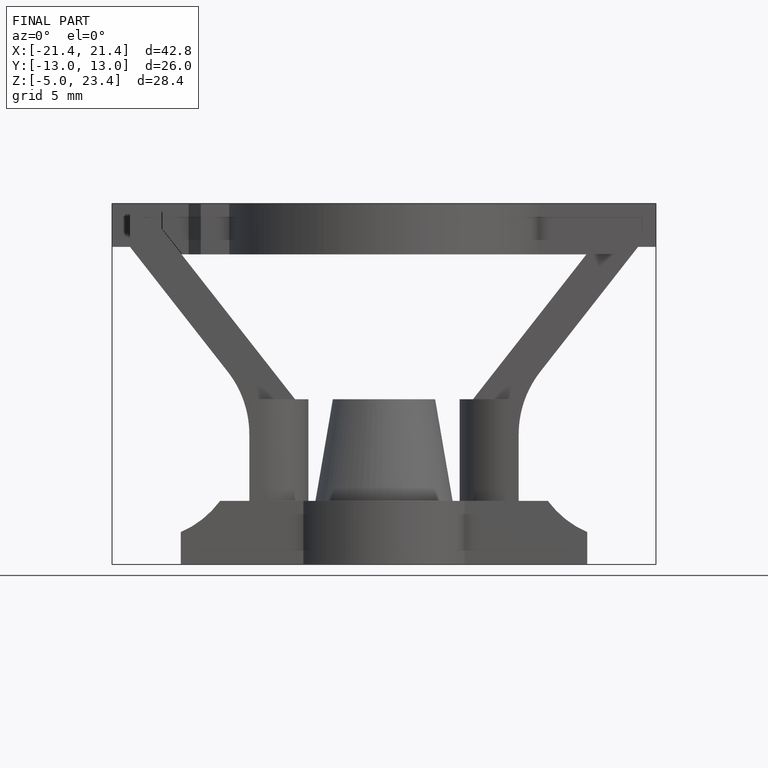
[diagram: finished part — front view with bounding-box wireframe]
